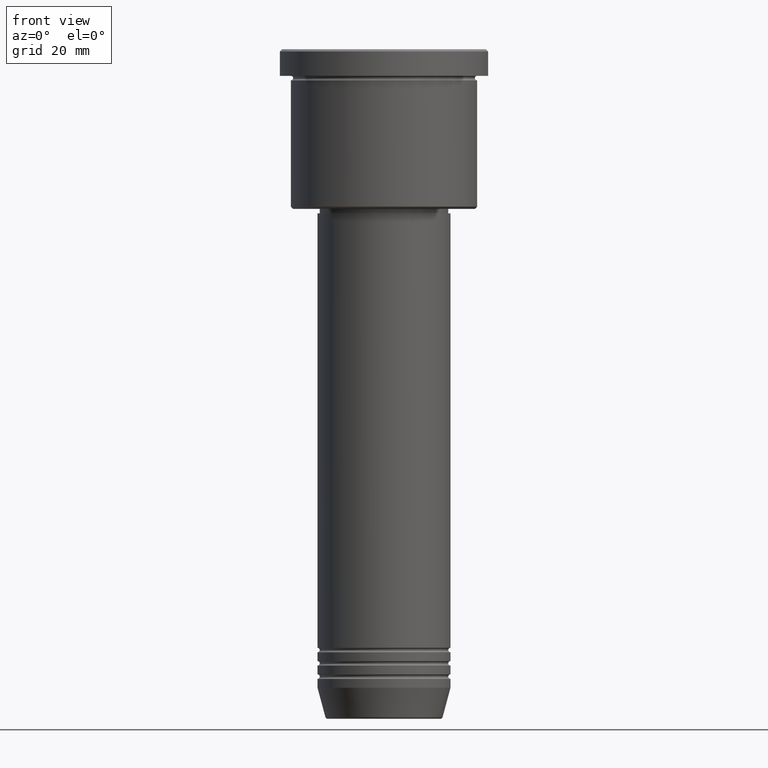
[diagram: clean part render]
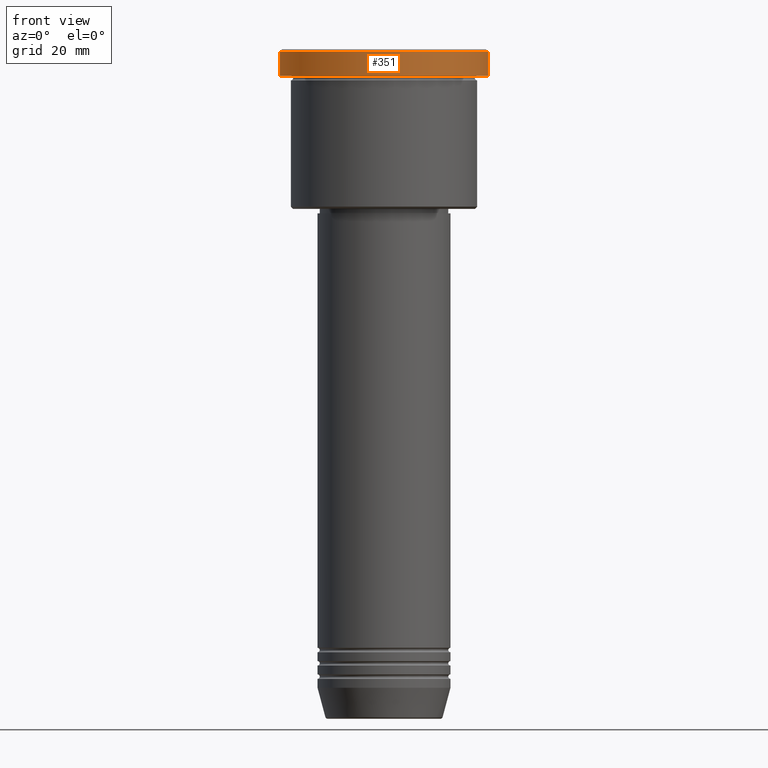
[diagram: same view with one face highlighted and labeled with its STEP entity id]
A machine part, front view. The second image highlights one B-rep face of the part: STEP entity #351.
In plain terms, the highlighted cylindrical surface (partial cylindrical patch) has radius 23.5 mm, axis along (-0, -0, 1).
Its self-contained STEP definition (entity closure, byte-faithful):
#34 = VERTEX_POINT ( 'NONE', #1124 ) ;
#37 = VECTOR ( 'NONE', #602, 1000.000000000000000 ) ;
#70 = ORIENTED_EDGE ( 'NONE', *, *, #1092, .T. ) ;
#74 = LINE ( 'NONE', #240, #37 ) ;
#104 = AXIS2_PLACEMENT_3D ( 'NONE', #698, #152, #970 ) ;
#152 = DIRECTION ( 'NONE',  ( -0.000000000000000000, -0.000000000000000000, 1.000000000000000000 ) ) ;
#154 = CARTESIAN_POINT ( 'NONE',  ( 23.50000000000000000, 0.000000000000000000, -5.999999999999994671 ) ) ;
#156 = VERTEX_POINT ( 'NONE', #253 ) ;
#200 = FACE_OUTER_BOUND ( 'NONE', #451, .T. ) ;
#227 = DIRECTION ( 'NONE',  ( 1.000000000000000000, 0.000000000000000000, 0.000000000000000000 ) ) ;
#240 = CARTESIAN_POINT ( 'NONE',  ( 23.50000000000000000, 0.000000000000000000, 0.000000000000000000 ) ) ;
#253 = CARTESIAN_POINT ( 'NONE',  ( -23.50000000000000000, 2.877919977996280320E-15, -0.5000000000000143219 ) ) ;
#289 = DIRECTION ( 'NONE',  ( 1.000000000000000000, 0.000000000000000000, 0.000000000000000000 ) ) ;
#351 = ADVANCED_FACE ( 'NONE', ( #200 ), #744, .T. ) ;
#386 = ORIENTED_EDGE ( 'NONE', *, *, #538, .F. ) ;
#427 = CIRCLE ( 'NONE', #463, 23.50000000000000000 ) ;
#442 = VECTOR ( 'NONE', #665, 1000.000000000000000 ) ;
#451 = EDGE_LOOP ( 'NONE', ( #386, #70, #874, #906 ) ) ;
#463 = AXIS2_PLACEMENT_3D ( 'NONE', #793, #1154, #227 ) ;
#502 = CIRCLE ( 'NONE', #104, 23.50000000000000000 ) ;
#538 = EDGE_CURVE ( 'NONE', #34, #156, #769, .T. ) ;
#602 = DIRECTION ( 'NONE',  ( -0.000000000000000000, -0.000000000000000000, 1.000000000000000000 ) ) ;
#657 = DIRECTION ( 'NONE',  ( -0.000000000000000000, -0.000000000000000000, 1.000000000000000000 ) ) ;
#661 = VERTEX_POINT ( 'NONE', #154 ) ;
#665 = DIRECTION ( 'NONE',  ( -0.000000000000000000, -0.000000000000000000, 1.000000000000000000 ) ) ;
#695 = EDGE_CURVE ( 'NONE', #661, #747, #74, .T. ) ;
#698 = CARTESIAN_POINT ( 'NONE',  ( 0.000000000000000000, 0.000000000000000000, -5.999999999999994671 ) ) ;
#744 = CYLINDRICAL_SURFACE ( 'NONE', #915, 23.50000000000000000 ) ;
#747 = VERTEX_POINT ( 'NONE', #1003 ) ;
#764 = CARTESIAN_POINT ( 'NONE',  ( -23.50000000000000000, 2.877919977996280320E-15, 0.000000000000000000 ) ) ;
#769 = LINE ( 'NONE', #764, #442 ) ;
#793 = CARTESIAN_POINT ( 'NONE',  ( 0.000000000000000000, 0.000000000000000000, -0.5000000000000143219 ) ) ;
#831 = CARTESIAN_POINT ( 'NONE',  ( 0.000000000000000000, 0.000000000000000000, 0.000000000000000000 ) ) ;
#874 = ORIENTED_EDGE ( 'NONE', *, *, #695, .T. ) ;
#906 = ORIENTED_EDGE ( 'NONE', *, *, #1177, .T. ) ;
#915 = AXIS2_PLACEMENT_3D ( 'NONE', #831, #657, #289 ) ;
#970 = DIRECTION ( 'NONE',  ( 1.000000000000000000, 0.000000000000000000, 0.000000000000000000 ) ) ;
#1003 = CARTESIAN_POINT ( 'NONE',  ( 23.50000000000000000, 0.000000000000000000, -0.5000000000000143219 ) ) ;
#1092 = EDGE_CURVE ( 'NONE', #34, #661, #502, .T. ) ;
#1124 = CARTESIAN_POINT ( 'NONE',  ( -23.50000000000000000, 2.877919977996280320E-15, -5.999999999999994671 ) ) ;
#1154 = DIRECTION ( 'NONE',  ( 0.000000000000000000, 0.000000000000000000, -1.000000000000000000 ) ) ;
#1177 = EDGE_CURVE ( 'NONE', #747, #156, #427, .T. ) ;